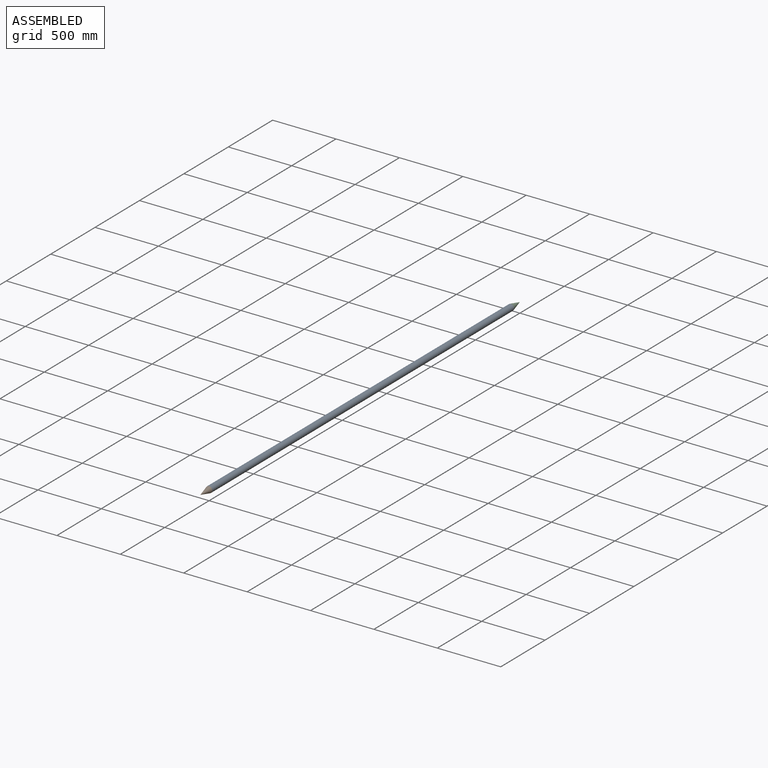
[diagram: assembled view]
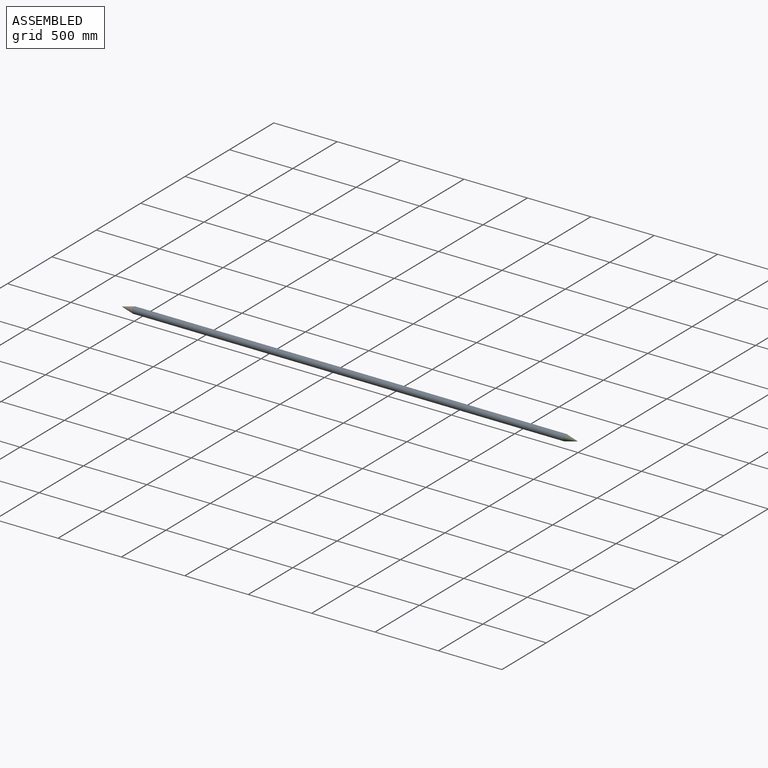
[diagram: assembled view, second angle]
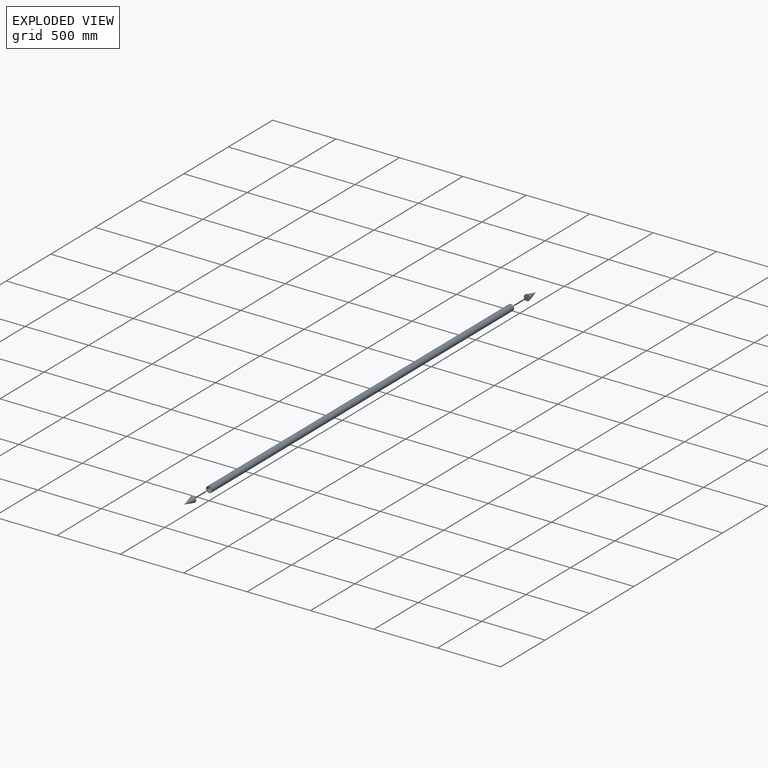
[diagram: exploded view]
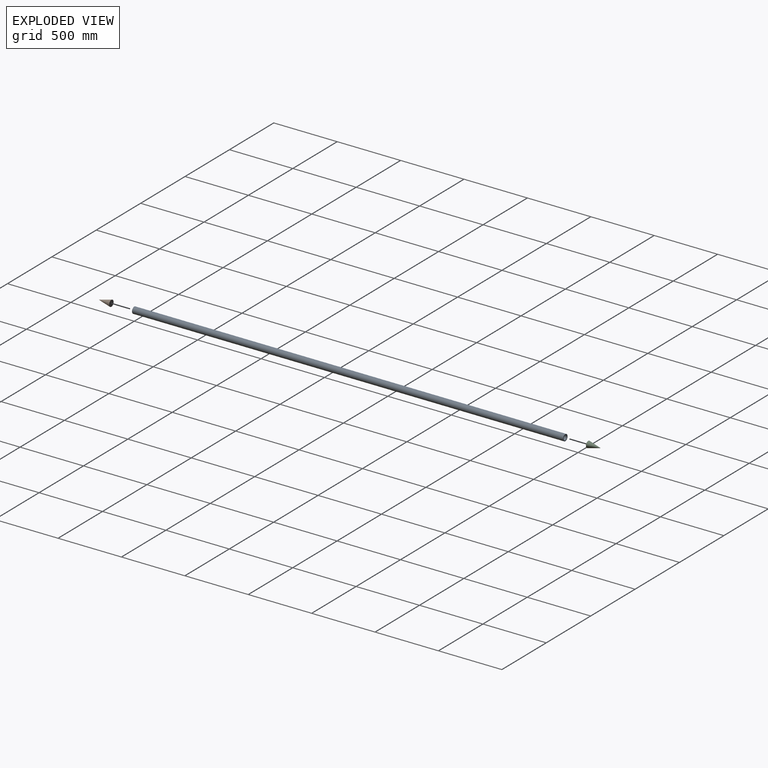
[diagram: exploded view, second angle]
ASSEMBLY  parts=3 mates=3
PART A: 4 faces, bbox 50x50x3400 mm
  f0: cylinder r=19mm len=3400mm, axis (0,0,-1), area 405893.8mm2, adj f2,f3
  f1: cylinder r=25mm len=3400mm, axis (0,0,-1), area 534070.8mm2, adj f2,f3
  f2: plane 50x50mm, normal (0,0,1), area 829.4mm2, adj f0,f1
  f3: plane 50x50mm, normal (0,0,-1), area 829.4mm2, adj f0,f1
PART B: 2 faces, bbox 50x50x100 mm
  f0: plane 50x50mm, normal (0,0,-1), area 1963.5mm2, adj f1
  f1: cone r=0mm half-angle=14deg, axis (0,0,-1), area 8095.7mm2, adj f0
PART C: same geometry as B
PLACE A rot(axis=(-1,0,0),90deg) t=(0,-3500,0)mm
PLACE B rot(axis=(1,0,0),90deg) t=(0,-3500,0)mm
PLACE C rot(axis=(0,0.71,0.71),180deg) t=(0,-100,0)mm
MATE fastened C.f1 <-> A.f1  axis (0,-1,0) through (0,-100,0)mm
MATE planar C.f1 <-> A.f1  axis (0,-1,0) through (0,-100,0)mm
MATE fastened B.f1 <-> A.f1  axis (0,1,0) through (0,-3500,0)mm
